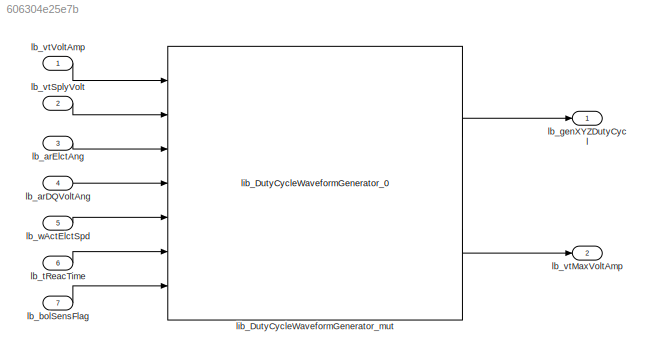
MODEL slx_606304e25e7b
KIND model
CONFIG AbsTol = auto
CONFIG EnableMultiTasking = off
CONFIG FixedStep = 6.25e-6
CONFIG MaxStep = auto
CONFIG MinStep = auto
CONFIG RelTol = 1e-3
CONFIG SampleTimeConstraint = Unconstrained
CONFIG SolverName = FixedStepAuto
CONFIG StartTime = 0.0
CONFIG StopTime = 10.0
BLOCK [Inport] lb_arDQVoltAng
  Interpolate = off
  OutDataTypeStr = fixdt(0,16,pi*2^-15,0)
  Port = 4
BLOCK [Inport] lb_arElctAng
  Interpolate = off
  OutDataTypeStr = fixdt(0,16,pi*2^-15,0)
  Port = 3
BLOCK [Inport] lb_bolSensFlag
  OutDataTypeStr = boolean
  Port = 7
BLOCK [Outport] lb_genXYZDutyCycl
  OutDataTypeStr = fixdt(0,16,2^-15,0)
BLOCK [Inport] lb_tReacTime
  Interpolate = off
  OutDataTypeStr = fixdt(0,16,2^-26,0)
  Port = 6
BLOCK [Outport] lb_vtMaxVoltAmp
  Port = 2
BLOCK [Inport] lb_vtSplyVolt
  Interpolate = off
  OutDataTypeStr = fixdt(1,16,2^-9,0)
  Port = 2
BLOCK [Inport] lb_vtVoltAmp
  Interpolate = off
  OutDataTypeStr = fixdt(1,16,2^-9,0)
BLOCK [Inport] lb_wActElctSpd
  Interpolate = off
  OutDataTypeStr = fixdt(1,16,2^-3,0)
  Port = 5
BLOCK [Reference] lib_DutyCycleWaveformGenerator_mut  REF=vhit_control_library/lib_DutyCycleWaveformGenerator_0  (lib defined in slx_b9b276feab74)
  Ports = [7, 2]
  SourceBlock = vhit_control_library/lib_DutyCycleWaveformGenerator_0
LINE lb_arDQVoltAng:1 -> lib_DutyCycleWaveformGenerator_mut:4
LINE lb_arElctAng:1 -> lib_DutyCycleWaveformGenerator_mut:3
LINE lb_bolSensFlag:1 -> lib_DutyCycleWaveformGenerator_mut:7
LINE lb_tReacTime:1 -> lib_DutyCycleWaveformGenerator_mut:6
LINE lb_vtSplyVolt:1 -> lib_DutyCycleWaveformGenerator_mut:2
LINE lb_vtVoltAmp:1 -> lib_DutyCycleWaveformGenerator_mut:1
LINE lb_wActElctSpd:1 -> lib_DutyCycleWaveformGenerator_mut:5
LINE lib_DutyCycleWaveformGenerator_mut:1 -> lb_genXYZDutyCycl:1
LINE lib_DutyCycleWaveformGenerator_mut:2 -> lb_vtMaxVoltAmp:1
